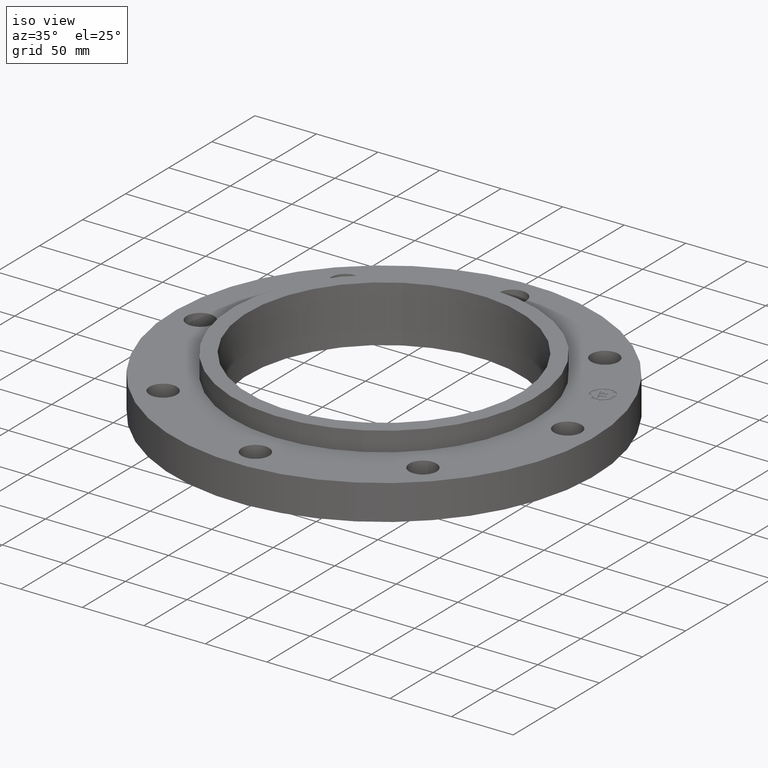
[diagram: clean part render]
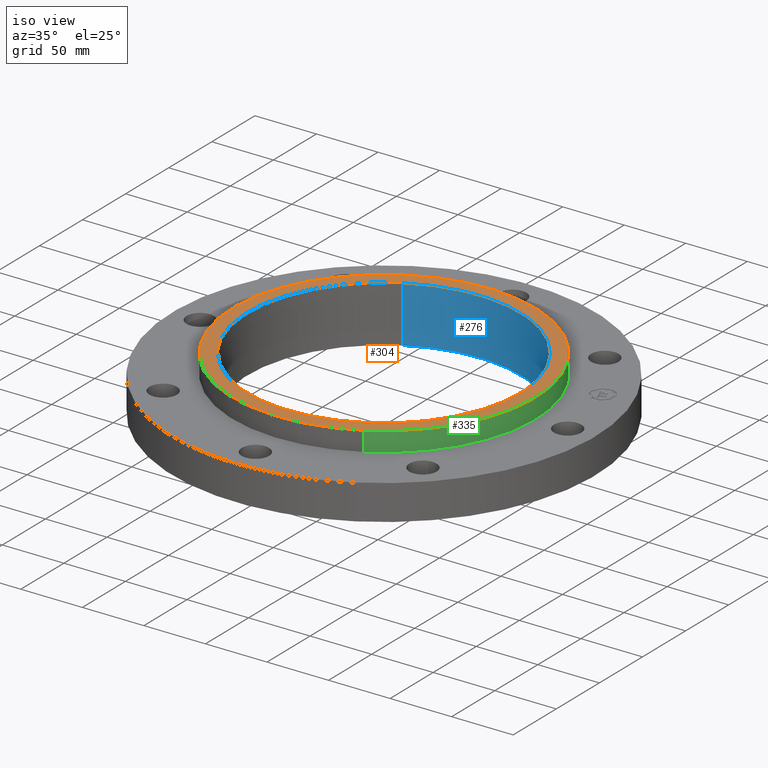
[diagram: same view with three faces highlighted in distinct colors, each labeled with its STEP entity id]
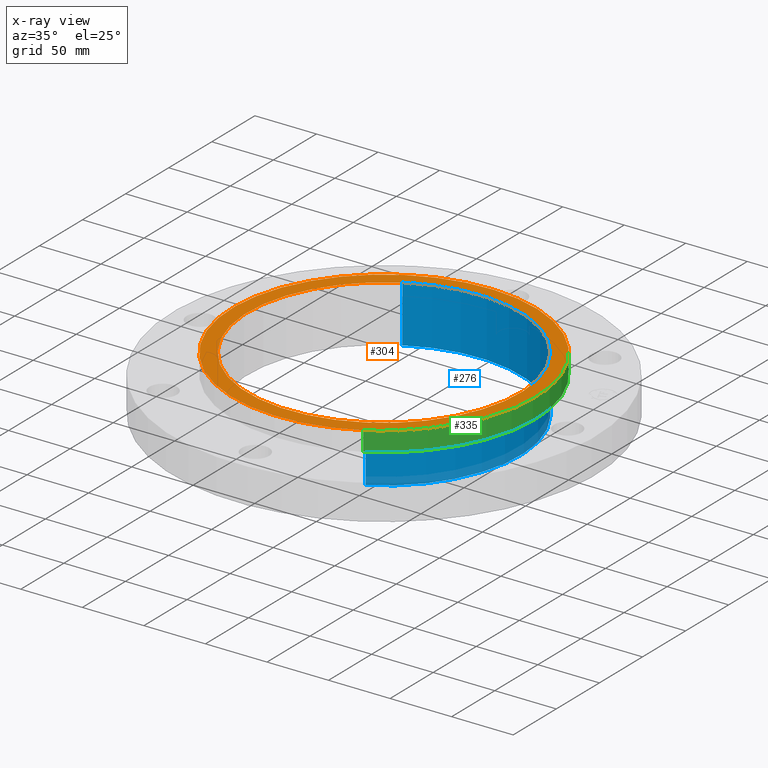
[diagram: x-ray of the same camera — body ghosted, the three highlighted faces saturated]
A machine part, iso view with three faces highlighted in distinct colors.
The next image is the same camera in x-ray (body ghosted, the three faces saturated) — at least one of them is partly hidden behind the body in this view.
Their STEP definitions:

[orange] entity #304 — the highlighted planar face has unit normal (0, 0, 1).
#255=AXIS2_PLACEMENT_3D('Circle Axis2P3D',#253,#254,$) ;
#267=AXIS2_PLACEMENT_3D('Circle Axis2P3D',#265,#266,$) ;
#280=AXIS2_PLACEMENT_3D('Plane Axis2P3D',#277,#278,#279) ;
#284=AXIS2_PLACEMENT_3D('Circle Axis2P3D',#282,#283,$) ;
#293=AXIS2_PLACEMENT_3D('Circle Axis2P3D',#291,#292,$) ;
#243=CARTESIAN_POINT('Vertex',(2.09029534832,-3.82625996986,1.75000000001)) ;
#250=CARTESIAN_POINT('Vertex',(-2.09029534832,3.82625996986,1.75000000001)) ;
#253=CARTESIAN_POINT('Axis2P3D Location',(0.,0.,1.75000000001)) ;
#265=CARTESIAN_POINT('Axis2P3D Location',(0.,0.,1.75000000001)) ;
#277=CARTESIAN_POINT('Axis2P3D Location',(0.,4.36000000002,1.75000000001)) ;
#282=CARTESIAN_POINT('Axis2P3D Location',(0.,0.,1.75000000001)) ;
#286=CARTESIAN_POINT('Vertex',(2.32233730901,-4.25100992981,1.75000000001)) ;
#288=CARTESIAN_POINT('Vertex',(-2.32233730901,4.25100992981,1.75000000001)) ;
#291=CARTESIAN_POINT('Axis2P3D Location',(0.,0.,1.75000000001)) ;
#254=DIRECTION('Axis2P3D Direction',(0.,0.,0.0393700787402)) ;
#266=DIRECTION('Axis2P3D Direction',(0.,0.,0.0393700787402)) ;
#278=DIRECTION('Axis2P3D Direction',(0.,0.,0.0393700787402)) ;
#279=DIRECTION('Axis2P3D XDirection',(0.0393700787402,0.,0.)) ;
#283=DIRECTION('Axis2P3D Direction',(0.,0.,0.0393700787402)) ;
#292=DIRECTION('Axis2P3D Direction',(0.,0.,0.0393700787402)) ;
#297=ORIENTED_EDGE('',*,*,#290,.T.) ;
#298=ORIENTED_EDGE('',*,*,#295,.T.) ;
#301=ORIENTED_EDGE('',*,*,#257,.F.) ;
#302=ORIENTED_EDGE('',*,*,#269,.F.) ;
#303=FACE_BOUND('',#300,.T.) ;
#304=ADVANCED_FACE('PartBody',(#299,#303),#281,.T.) ;
#256=CIRCLE('generated circle',#255,4.36000000002) ;
#268=CIRCLE('generated circle',#267,4.36000000002) ;
#285=CIRCLE('generated circle',#284,4.84400000002) ;
#294=CIRCLE('generated circle',#293,4.84400000002) ;
#257=EDGE_CURVE('',#251,#244,#256,.T.) ;
#269=EDGE_CURVE('',#244,#251,#268,.T.) ;
#290=EDGE_CURVE('',#287,#289,#285,.T.) ;
#295=EDGE_CURVE('',#289,#287,#294,.T.) ;
#296=EDGE_LOOP('',(#297,#298)) ;
#300=EDGE_LOOP('',(#301,#302)) ;
#299=FACE_OUTER_BOUND('',#296,.T.) ;
#281=PLANE('',#280) ;
#244=VERTEX_POINT('',#243) ;
#251=VERTEX_POINT('',#250) ;
#287=VERTEX_POINT('',#286) ;
#289=VERTEX_POINT('',#288) ;

[blue] entity #276 — the highlighted cylindrical surface (partial cylindrical patch) has radius 110.744 mm, axis along (0, 0, 1).
#217=AXIS2_PLACEMENT_3D('Circle Axis2P3D',#215,#216,$) ;
#237=AXIS2_PLACEMENT_3D('Cylinder Axis2P3D',#234,#235,#236) ;
#267=AXIS2_PLACEMENT_3D('Circle Axis2P3D',#265,#266,$) ;
#215=CARTESIAN_POINT('Axis2P3D Location',(0.,0.,-0.0625000000002)) ;
#219=CARTESIAN_POINT('Vertex',(2.09029534832,-3.82625996986,-0.0625000000003)) ;
#221=CARTESIAN_POINT('Vertex',(-2.09029534832,3.82625996986,-0.0625000000003)) ;
#234=CARTESIAN_POINT('Axis2P3D Location',(0.,0.,0.843750000003)) ;
#239=CARTESIAN_POINT('Line Origine',(2.09029534832,-3.82625996986,0.843750000003)) ;
#243=CARTESIAN_POINT('Vertex',(2.09029534832,-3.82625996986,1.75000000001)) ;
#246=CARTESIAN_POINT('Line Origine',(-2.09029534832,3.82625996986,0.843750000003)) ;
#250=CARTESIAN_POINT('Vertex',(-2.09029534832,3.82625996986,1.75000000001)) ;
#265=CARTESIAN_POINT('Axis2P3D Location',(0.,0.,1.75000000001)) ;
#216=DIRECTION('Axis2P3D Direction',(0.,0.,0.0393700787402)) ;
#235=DIRECTION('Axis2P3D Direction',(0.,0.,0.0393700787402)) ;
#236=DIRECTION('Axis2P3D XDirection',(0.0188750212049,-0.0345504945626,0.)) ;
#240=DIRECTION('Vector Direction',(0.,0.,0.0393700787402)) ;
#247=DIRECTION('Vector Direction',(0.,0.,0.0393700787402)) ;
#266=DIRECTION('Axis2P3D Direction',(0.,0.,0.0393700787402)) ;
#241=VECTOR('Line Direction',#240,0.0393700787402) ;
#248=VECTOR('Line Direction',#247,0.0393700787402) ;
#271=ORIENTED_EDGE('',*,*,#252,.T.) ;
#272=ORIENTED_EDGE('',*,*,#223,.F.) ;
#273=ORIENTED_EDGE('',*,*,#245,.F.) ;
#274=ORIENTED_EDGE('',*,*,#269,.T.) ;
#276=ADVANCED_FACE('PartBody',(#275),#238,.F.) ;
#218=CIRCLE('generated circle',#217,4.36000000002) ;
#268=CIRCLE('generated circle',#267,4.36000000002) ;
#238=CYLINDRICAL_SURFACE('generated cylinder',#237,4.36000000002) ;
#223=EDGE_CURVE('',#220,#222,#218,.T.) ;
#245=EDGE_CURVE('',#244,#220,#242,.F.) ;
#252=EDGE_CURVE('',#251,#222,#249,.F.) ;
#269=EDGE_CURVE('',#244,#251,#268,.T.) ;
#270=EDGE_LOOP('',(#271,#272,#273,#274)) ;
#275=FACE_OUTER_BOUND('',#270,.T.) ;
#242=LINE('Line',#239,#241) ;
#249=LINE('Line',#246,#248) ;
#220=VERTEX_POINT('',#219) ;
#222=VERTEX_POINT('',#221) ;
#244=VERTEX_POINT('',#243) ;
#251=VERTEX_POINT('',#250) ;

[green] entity #335 — the highlighted cylindrical surface (partial cylindrical patch) has radius 123.038 mm, axis along (0, 0, 1).
#284=AXIS2_PLACEMENT_3D('Circle Axis2P3D',#282,#283,$) ;
#308=AXIS2_PLACEMENT_3D('Cylinder Axis2P3D',#305,#306,#307) ;
#326=AXIS2_PLACEMENT_3D('Circle Axis2P3D',#324,#325,$) ;
#282=CARTESIAN_POINT('Axis2P3D Location',(0.,0.,1.75000000001)) ;
#286=CARTESIAN_POINT('Vertex',(2.32233730901,-4.25100992981,1.75000000001)) ;
#288=CARTESIAN_POINT('Vertex',(-2.32233730901,4.25100992981,1.75000000001)) ;
#305=CARTESIAN_POINT('Axis2P3D Location',(0.,0.,0.843750000003)) ;
#310=CARTESIAN_POINT('Line Origine',(-2.32233730901,4.25100992981,1.43750000001)) ;
#314=CARTESIAN_POINT('Vertex',(-2.32233730901,4.25100992981,1.125)) ;
#317=CARTESIAN_POINT('Line Origine',(2.32233730901,-4.25100992981,1.43750000001)) ;
#321=CARTESIAN_POINT('Vertex',(2.32233730901,-4.25100992981,1.125)) ;
#324=CARTESIAN_POINT('Axis2P3D Location',(0.,0.,1.125)) ;
#283=DIRECTION('Axis2P3D Direction',(0.,0.,0.0393700787402)) ;
#306=DIRECTION('Axis2P3D Direction',(0.,0.,0.0393700787402)) ;
#307=DIRECTION('Axis2P3D XDirection',(-0.0188750212049,0.0345504945626,0.)) ;
#311=DIRECTION('Vector Direction',(0.,0.,0.0393700787402)) ;
#318=DIRECTION('Vector Direction',(0.,0.,0.0393700787402)) ;
#325=DIRECTION('Axis2P3D Direction',(0.,0.,0.0393700787402)) ;
#312=VECTOR('Line Direction',#311,0.0393700787402) ;
#319=VECTOR('Line Direction',#318,0.0393700787402) ;
#330=ORIENTED_EDGE('',*,*,#316,.T.) ;
#331=ORIENTED_EDGE('',*,*,#290,.F.) ;
#332=ORIENTED_EDGE('',*,*,#323,.F.) ;
#333=ORIENTED_EDGE('',*,*,#328,.T.) ;
#335=ADVANCED_FACE('PartBody',(#334),#309,.T.) ;
#285=CIRCLE('generated circle',#284,4.84400000002) ;
#327=CIRCLE('generated circle',#326,4.84400000002) ;
#309=CYLINDRICAL_SURFACE('generated cylinder',#308,4.84400000002) ;
#290=EDGE_CURVE('',#287,#289,#285,.T.) ;
#316=EDGE_CURVE('',#315,#289,#313,.T.) ;
#323=EDGE_CURVE('',#322,#287,#320,.T.) ;
#328=EDGE_CURVE('',#322,#315,#327,.T.) ;
#329=EDGE_LOOP('',(#330,#331,#332,#333)) ;
#334=FACE_OUTER_BOUND('',#329,.T.) ;
#313=LINE('Line',#310,#312) ;
#320=LINE('Line',#317,#319) ;
#287=VERTEX_POINT('',#286) ;
#289=VERTEX_POINT('',#288) ;
#315=VERTEX_POINT('',#314) ;
#322=VERTEX_POINT('',#321) ;